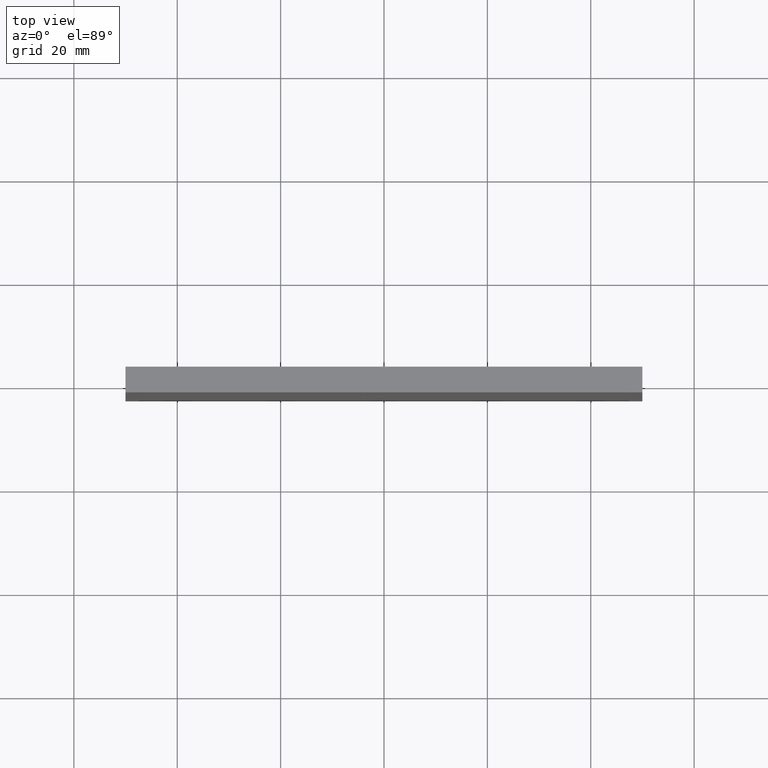
[diagram: clean part render]
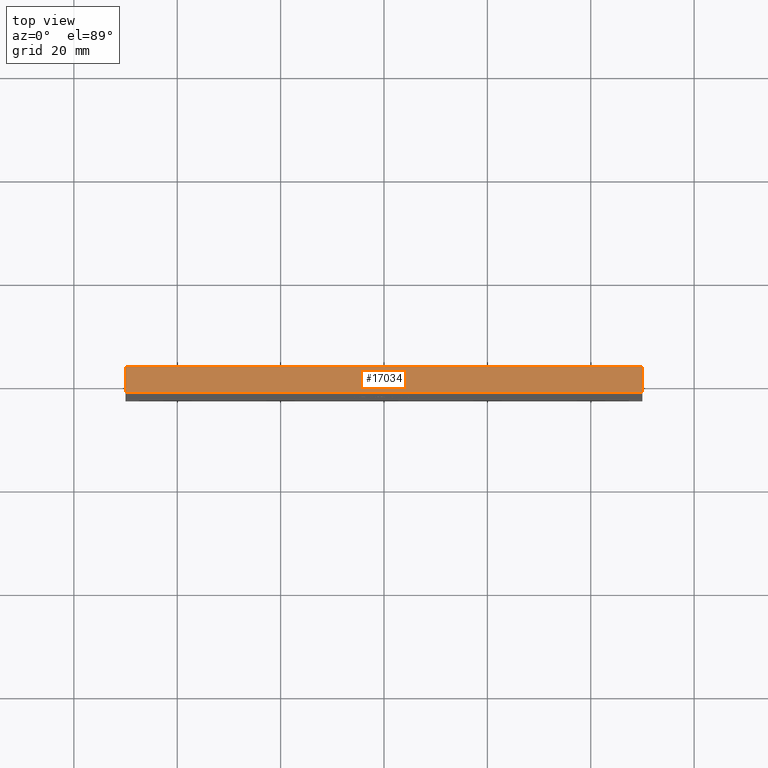
[diagram: same view with one face highlighted and labeled with its STEP entity id]
A machine part, top view. The second image highlights one B-rep face of the part: STEP entity #17034.
In plain terms, the highlighted planar face has unit normal (0, 0, -1).
Its self-contained STEP definition (entity closure, byte-faithful):
#26 = CARTESIAN_POINT ( 'NONE',  ( 49.99999999999999289, -2.500000000000000000, 49.99999999999999289 ) ) ;
#573 = VERTEX_POINT ( 'NONE', #4289 ) ;
#800 = DIRECTION ( 'NONE',  ( -1.000000000000000000, 0.000000000000000000, -0.000000000000000000 ) ) ;
#1200 = ORIENTED_EDGE ( 'NONE', *, *, #12581, .F. ) ;
#1257 = LINE ( 'NONE', #8800, #11954 ) ;
#1617 = EDGE_CURVE ( 'NONE', #9942, #6713, #1257, .T. ) ;
#3748 = DIRECTION ( 'NONE',  ( -0.000000000000000000, -1.000000000000000000, -0.000000000000000000 ) ) ;
#3856 = VERTEX_POINT ( 'NONE', #26 ) ;
#4018 = VECTOR ( 'NONE', #3748, 1000.000000000000000 ) ;
#4289 = CARTESIAN_POINT ( 'NONE',  ( 49.99999999999999289, 2.500000000000000000, 49.99999999999999289 ) ) ;
#4805 = VECTOR ( 'NONE', #10972, 1000.000000000000000 ) ;
#5066 = AXIS2_PLACEMENT_3D ( 'NONE', #14244, #15643, #800 ) ;
#6090 = LINE ( 'NONE', #6300, #4018 ) ;
#6300 = CARTESIAN_POINT ( 'NONE',  ( 49.99999999999999289, 2.500000000000000000, 49.99999999999999289 ) ) ;
#6468 = LINE ( 'NONE', #13918, #4805 ) ;
#6685 = CARTESIAN_POINT ( 'NONE',  ( -50.00000000000000711, 2.500000000000000000, 49.99999999999999289 ) ) ;
#6713 = VERTEX_POINT ( 'NONE', #12408 ) ;
#7334 = ORIENTED_EDGE ( 'NONE', *, *, #1617, .T. ) ;
#8800 = CARTESIAN_POINT ( 'NONE',  ( -50.00000000000000711, 2.500000000000000000, 49.99999999999999289 ) ) ;
#8829 = PLANE ( 'NONE',  #5066 ) ;
#8874 = EDGE_LOOP ( 'NONE', ( #15761, #1200, #15277, #7334 ) ) ;
#9942 = VERTEX_POINT ( 'NONE', #14123 ) ;
#10972 = DIRECTION ( 'NONE',  ( 1.000000000000000000, 0.000000000000000000, 0.000000000000000000 ) ) ;
#11293 = FACE_OUTER_BOUND ( 'NONE', #8874, .T. ) ;
#11517 = EDGE_CURVE ( 'NONE', #9942, #573, #16202, .T. ) ;
#11954 = VECTOR ( 'NONE', #12826, 1000.000000000000000 ) ;
#12408 = CARTESIAN_POINT ( 'NONE',  ( -50.00000000000000711, -2.500000000000000000, 49.99999999999999289 ) ) ;
#12581 = EDGE_CURVE ( 'NONE', #573, #3856, #6090, .T. ) ;
#12826 = DIRECTION ( 'NONE',  ( -0.000000000000000000, -1.000000000000000000, -0.000000000000000000 ) ) ;
#13918 = CARTESIAN_POINT ( 'NONE',  ( -50.00000000000000711, -2.500000000000000000, 49.99999999999999289 ) ) ;
#14123 = CARTESIAN_POINT ( 'NONE',  ( -50.00000000000000711, 2.500000000000000000, 49.99999999999999289 ) ) ;
#14244 = CARTESIAN_POINT ( 'NONE',  ( -50.00000000000000711, 2.500000000000000000, 49.99999999999999289 ) ) ;
#14748 = VECTOR ( 'NONE', #16212, 1000.000000000000000 ) ;
#15277 = ORIENTED_EDGE ( 'NONE', *, *, #11517, .F. ) ;
#15643 = DIRECTION ( 'NONE',  ( 0.000000000000000000, 0.000000000000000000, -1.000000000000000000 ) ) ;
#15761 = ORIENTED_EDGE ( 'NONE', *, *, #17275, .T. ) ;
#16202 = LINE ( 'NONE', #6685, #14748 ) ;
#16212 = DIRECTION ( 'NONE',  ( 1.000000000000000000, 0.000000000000000000, 0.000000000000000000 ) ) ;
#17034 = ADVANCED_FACE ( 'NONE', ( #11293 ), #8829, .F. ) ;
#17275 = EDGE_CURVE ( 'NONE', #6713, #3856, #6468, .T. ) ;